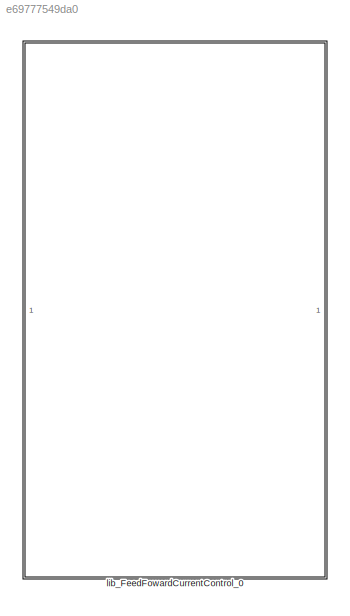
MODEL slx_e69777549da0
KIND library
CONFIG AbsTol = auto
CONFIG EnableMultiTasking = off
CONFIG FixedStep = auto
CONFIG MaxStep = auto
CONFIG MinStep = auto
CONFIG RelTol = 1e-3
CONFIG SampleTimeConstraint = Unconstrained
CONFIG SolverName = VariableStepAuto
CONFIG StartTime = 0.0
CONFIG StopTime = 10.0
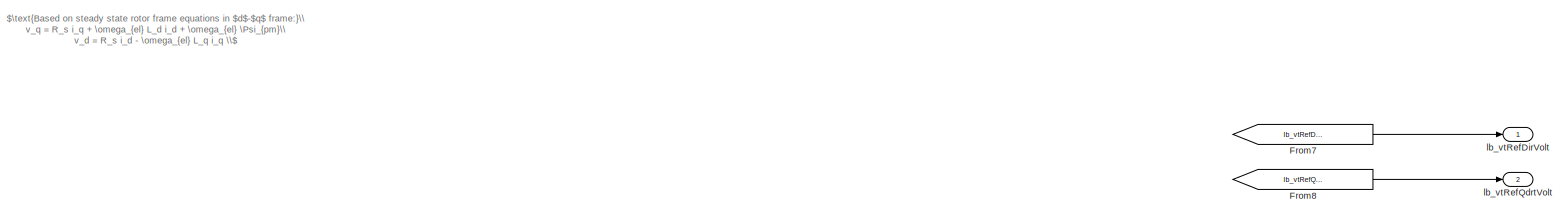
[diagram: lib_FeedFowardCurrentControl_0 - part 1/3, full width, top band]
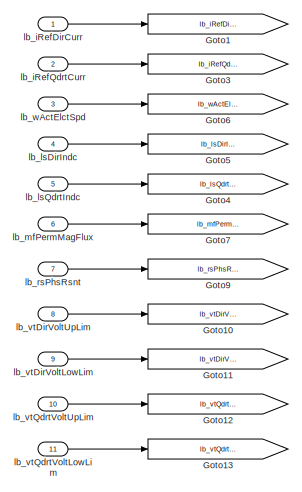
[diagram: lib_FeedFowardCurrentControl_0 - part 2/3, top left region]
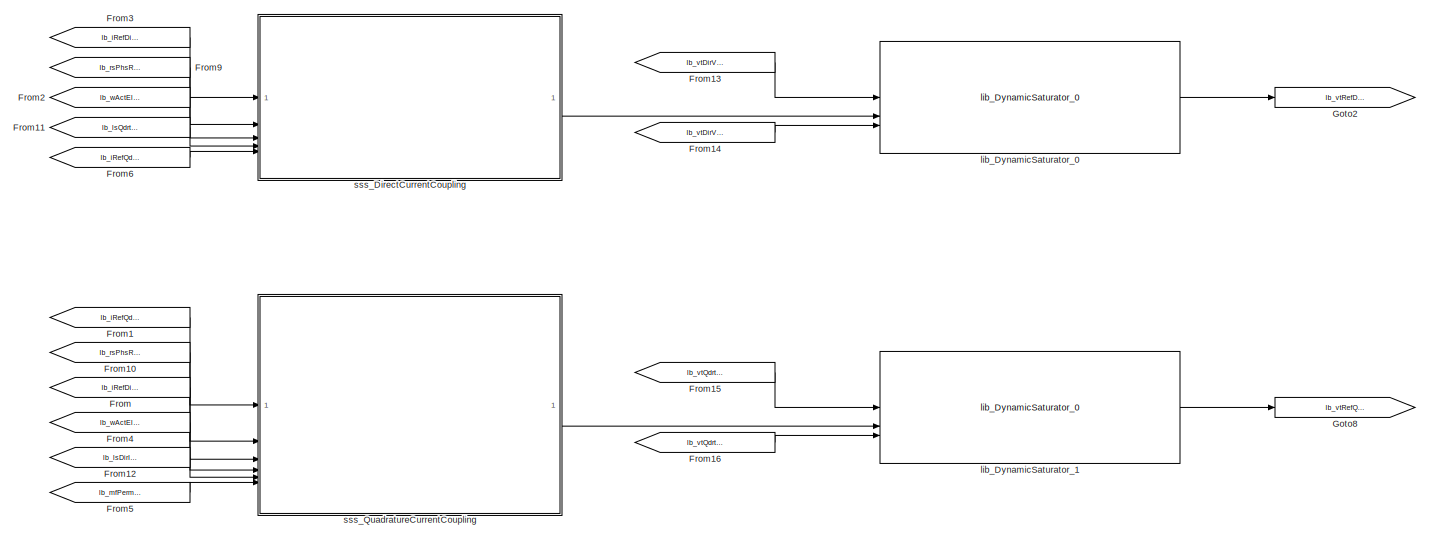
[diagram: lib_FeedFowardCurrentControl_0 - part 3/3, bottom center region]
BLOCK [SubSystem] lib_FeedFowardCurrentControl_0
BLOCK [From] lib_FeedFowardCurrentControl_0/From
  GotoTag = lb_iRefDirCurr
BLOCK [From] lib_FeedFowardCurrentControl_0/From1
  GotoTag = lb_iRefQdrtCurr
BLOCK [From] lib_FeedFowardCurrentControl_0/From10
  GotoTag = lb_rsPhsRsnt
BLOCK [From] lib_FeedFowardCurrentControl_0/From11
  GotoTag = lb_lsQdrtIndc
BLOCK [From] lib_FeedFowardCurrentControl_0/From12
  GotoTag = lb_lsDirIndc
BLOCK [From] lib_FeedFowardCurrentControl_0/From13
  GotoTag = lb_vtDirVoltUpLim
BLOCK [From] lib_FeedFowardCurrentControl_0/From14
  GotoTag = lb_vtDirVoltLowLim
BLOCK [From] lib_FeedFowardCurrentControl_0/From15
  GotoTag = lb_vtQdrtVoltUpLim
BLOCK [From] lib_FeedFowardCurrentControl_0/From16
  GotoTag = lb_vtQdrtVoltLowLim
BLOCK [From] lib_FeedFowardCurrentControl_0/From2
  GotoTag = lb_wActElctSpd
BLOCK [From] lib_FeedFowardCurrentControl_0/From3
  GotoTag = lb_iRefDirCurr
BLOCK [From] lib_FeedFowardCurrentControl_0/From4
  GotoTag = lb_wActElctSpd
BLOCK [From] lib_FeedFowardCurrentControl_0/From5
  GotoTag = lb_mfPermMagFlux
BLOCK [From] lib_FeedFowardCurrentControl_0/From6
  GotoTag = lb_iRefQdrtCurr
BLOCK [From] lib_FeedFowardCurrentControl_0/From7
  GotoTag = lb_vtRefDirVolt
BLOCK [From] lib_FeedFowardCurrentControl_0/From8
  GotoTag = lb_vtRefQdrtVolt
BLOCK [From] lib_FeedFowardCurrentControl_0/From9
  GotoTag = lb_rsPhsRsnt
BLOCK [Goto] lib_FeedFowardCurrentControl_0/Goto1
  GotoTag = lb_iRefDirCurr
BLOCK [Goto] lib_FeedFowardCurrentControl_0/Goto10
  GotoTag = lb_vtDirVoltUpLim
BLOCK [Goto] lib_FeedFowardCurrentControl_0/Goto11
  GotoTag = lb_vtDirVoltLowLim
BLOCK [Goto] lib_FeedFowardCurrentControl_0/Goto12
  GotoTag = lb_vtQdrtVoltUpLim
BLOCK [Goto] lib_FeedFowardCurrentControl_0/Goto13
  GotoTag = lb_vtQdrtVoltLowLim
BLOCK [Goto] lib_FeedFowardCurrentControl_0/Goto2
  GotoTag = lb_vtRefDirVolt
BLOCK [Goto] lib_FeedFowardCurrentControl_0/Goto3
  GotoTag = lb_iRefQdrtCurr
BLOCK [Goto] lib_FeedFowardCurrentControl_0/Goto4
  GotoTag = lb_lsQdrtIndc
BLOCK [Goto] lib_FeedFowardCurrentControl_0/Goto5
  GotoTag = lb_lsDirIndc
BLOCK [Goto] lib_FeedFowardCurrentControl_0/Goto6
  GotoTag = lb_wActElctSpd
BLOCK [Goto] lib_FeedFowardCurrentControl_0/Goto7
  GotoTag = lb_mfPermMagFlux
BLOCK [Goto] lib_FeedFowardCurrentControl_0/Goto8
  GotoTag = lb_vtRefQdrtVolt
BLOCK [Goto] lib_FeedFowardCurrentControl_0/Goto9
  GotoTag = lb_rsPhsRsnt
BLOCK [Inport] lib_FeedFowardCurrentControl_0/lb_iRefDirCurr
BLOCK [Inport] lib_FeedFowardCurrentControl_0/lb_iRefQdrtCurr
  Port = 2
BLOCK [Inport] lib_FeedFowardCurrentControl_0/lb_lsDirIndc
  Port = 4
BLOCK [Inport] lib_FeedFowardCurrentControl_0/lb_lsQdrtIndc
  Port = 5
BLOCK [Inport] lib_FeedFowardCurrentControl_0/lb_mfPermMagFlux
  Port = 6
BLOCK [Inport] lib_FeedFowardCurrentControl_0/lb_rsPhsRsnt
  Port = 7
BLOCK [Inport] lib_FeedFowardCurrentControl_0/lb_vtDirVoltLowLim
  Port = 9
BLOCK [Inport] lib_FeedFowardCurrentControl_0/lb_vtDirVoltUpLim
  Port = 8
BLOCK [Inport] lib_FeedFowardCurrentControl_0/lb_vtQdrtVoltLowLim
  Port = 11
BLOCK [Inport] lib_FeedFowardCurrentControl_0/lb_vtQdrtVoltUpLim
  Port = 10
BLOCK [Outport] lib_FeedFowardCurrentControl_0/lb_vtRefDirVolt
BLOCK [Outport] lib_FeedFowardCurrentControl_0/lb_vtRefQdrtVolt
  Port = 2
BLOCK [Inport] lib_FeedFowardCurrentControl_0/lb_wActElctSpd
  Port = 3
BLOCK [Reference] lib_FeedFowardCurrentControl_0/lib_DynamicSaturator_0  REF=lib_dynamic_saturator/lib_DynamicSaturator_0  (lib defined in slx_fcc78f0d1256)
  SourceBlock = lib_dynamic_saturator/lib_DynamicSaturator_0
BLOCK [Reference] lib_FeedFowardCurrentControl_0/lib_DynamicSaturator_1  REF=lib_dynamic_saturator/lib_DynamicSaturator_0  (lib defined in slx_fcc78f0d1256)
  SourceBlock = lib_dynamic_saturator/lib_DynamicSaturator_0
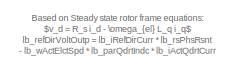
[diagram: lib_FeedFowardCurrentControl_0/sss_DirectCurrentCoupling - part 1/4, top left region]
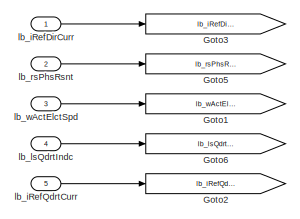
[diagram: lib_FeedFowardCurrentControl_0/sss_DirectCurrentCoupling - part 2/4, middle left region]
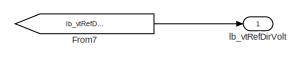
[diagram: lib_FeedFowardCurrentControl_0/sss_DirectCurrentCoupling - part 3/4, top right region]
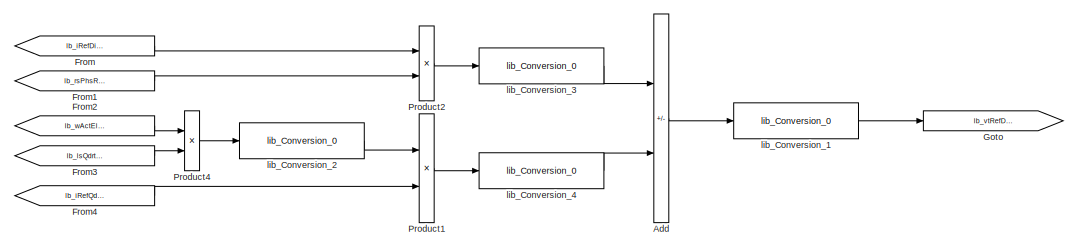
[diagram: lib_FeedFowardCurrentControl_0/sss_DirectCurrentCoupling - part 4/4, bottom center region]
BLOCK [SubSystem] lib_FeedFowardCurrentControl_0/sss_DirectCurrentCoupling
BLOCK [Sum] lib_FeedFowardCurrentControl_0/sss_DirectCurrentCoupling/Add
  IconShape = rectangular
  Inputs = +-
  OutDataTypeStr = Inherit: Inherit via back propagation
  RndMeth = Simplest
BLOCK [From] lib_FeedFowardCurrentControl_0/sss_DirectCurrentCoupling/From
  GotoTag = lb_iRefDirCurr
BLOCK [From] lib_FeedFowardCurrentControl_0/sss_DirectCurrentCoupling/From1
  GotoTag = lb_rsPhsRsnt
BLOCK [From] lib_FeedFowardCurrentControl_0/sss_DirectCurrentCoupling/From2
  GotoTag = lb_wActElctSpd
BLOCK [From] lib_FeedFowardCurrentControl_0/sss_DirectCurrentCoupling/From3
  GotoTag = lb_lsQdrtIndc
BLOCK [From] lib_FeedFowardCurrentControl_0/sss_DirectCurrentCoupling/From4
  GotoTag = lb_iRefQdrtCurr
BLOCK [From] lib_FeedFowardCurrentControl_0/sss_DirectCurrentCoupling/From7
  GotoTag = lb_vtRefDirVolt
BLOCK [Goto] lib_FeedFowardCurrentControl_0/sss_DirectCurrentCoupling/Goto
  GotoTag = lb_vtRefDirVolt
BLOCK [Goto] lib_FeedFowardCurrentControl_0/sss_DirectCurrentCoupling/Goto1
  GotoTag = lb_wActElctSpd
BLOCK [Goto] lib_FeedFowardCurrentControl_0/sss_DirectCurrentCoupling/Goto2
  GotoTag = lb_iRefQdrtCurr
BLOCK [Goto] lib_FeedFowardCurrentControl_0/sss_DirectCurrentCoupling/Goto3
  GotoTag = lb_iRefDirCurr
BLOCK [Goto] lib_FeedFowardCurrentControl_0/sss_DirectCurrentCoupling/Goto5
  GotoTag = lb_rsPhsRsnt
BLOCK [Goto] lib_FeedFowardCurrentControl_0/sss_DirectCurrentCoupling/Goto6
  GotoTag = lb_lsQdrtIndc
BLOCK [Product] lib_FeedFowardCurrentControl_0/sss_DirectCurrentCoupling/Product1
  OutDataTypeStr = Inherit: Inherit via back propagation
  RndMeth = Simplest
BLOCK [Product] lib_FeedFowardCurrentControl_0/sss_DirectCurrentCoupling/Product2
  OutDataTypeStr = Inherit: Inherit via back propagation
  RndMeth = Simplest
BLOCK [Product] lib_FeedFowardCurrentControl_0/sss_DirectCurrentCoupling/Product4
  OutDataTypeStr = Inherit: Inherit via back propagation
  RndMeth = Simplest
BLOCK [Inport] lib_FeedFowardCurrentControl_0/sss_DirectCurrentCoupling/lb_iRefDirCurr
BLOCK [Inport] lib_FeedFowardCurrentControl_0/sss_DirectCurrentCoupling/lb_iRefQdrtCurr
  Port = 5
BLOCK [Inport] lib_FeedFowardCurrentControl_0/sss_DirectCurrentCoupling/lb_lsQdrtIndc
  Port = 4
BLOCK [Inport] lib_FeedFowardCurrentControl_0/sss_DirectCurrentCoupling/lb_rsPhsRsnt
  Port = 2
BLOCK [Outport] lib_FeedFowardCurrentControl_0/sss_DirectCurrentCoupling/lb_vtRefDirVolt
BLOCK [Inport] lib_FeedFowardCurrentControl_0/sss_DirectCurrentCoupling/lb_wActElctSpd
  Port = 3
BLOCK [Reference] lib_FeedFowardCurrentControl_0/sss_DirectCurrentCoupling/lib_Conversion_1  REF=lib_conversion/lib_Conversion_0  (lib defined in slx_7f5c0202220d)
  SourceBlock = lib_conversion/lib_Conversion_0
BLOCK [Reference] lib_FeedFowardCurrentControl_0/sss_DirectCurrentCoupling/lib_Conversion_2  REF=lib_conversion/lib_Conversion_0  (lib defined in slx_7f5c0202220d)
  SourceBlock = lib_conversion/lib_Conversion_0
BLOCK [Reference] lib_FeedFowardCurrentControl_0/sss_DirectCurrentCoupling/lib_Conversion_3  REF=lib_conversion/lib_Conversion_0  (lib defined in slx_7f5c0202220d)
  SourceBlock = lib_conversion/lib_Conversion_0
BLOCK [Reference] lib_FeedFowardCurrentControl_0/sss_DirectCurrentCoupling/lib_Conversion_4  REF=lib_conversion/lib_Conversion_0  (lib defined in slx_7f5c0202220d)
  SourceBlock = lib_conversion/lib_Conversion_0
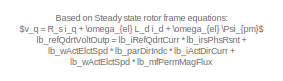
[diagram: lib_FeedFowardCurrentControl_0/sss_QuadratureCurrentCoupling - part 1/4, top left region]
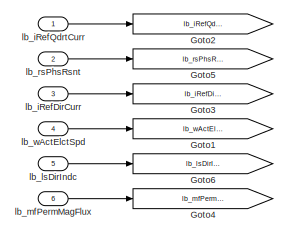
[diagram: lib_FeedFowardCurrentControl_0/sss_QuadratureCurrentCoupling - part 2/4, top left region]
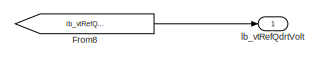
[diagram: lib_FeedFowardCurrentControl_0/sss_QuadratureCurrentCoupling - part 3/4, top right region]
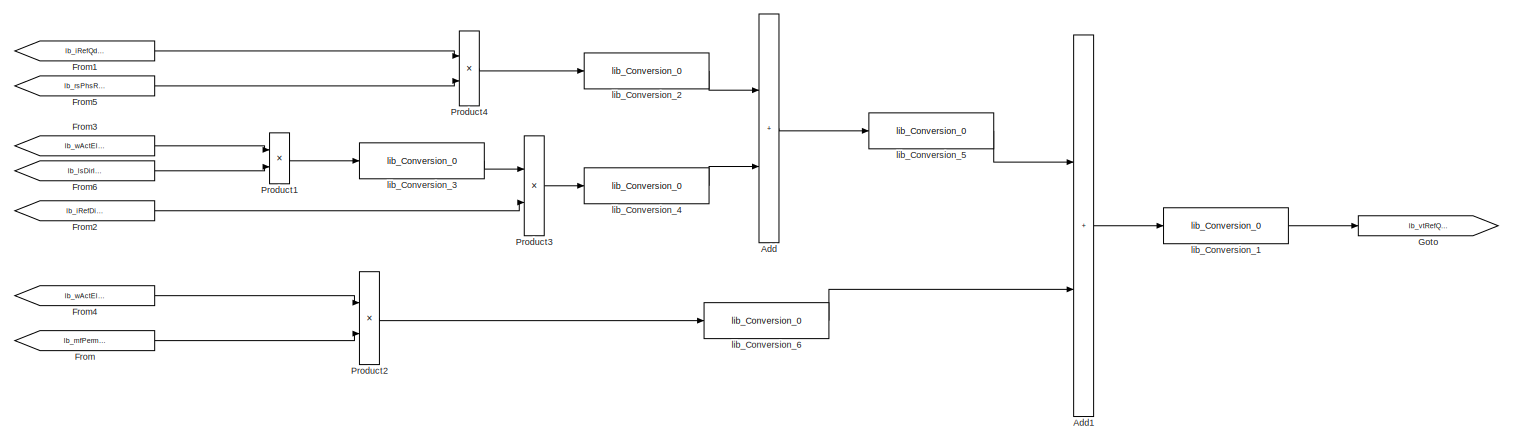
[diagram: lib_FeedFowardCurrentControl_0/sss_QuadratureCurrentCoupling - part 4/4, bottom center region]
BLOCK [SubSystem] lib_FeedFowardCurrentControl_0/sss_QuadratureCurrentCoupling
BLOCK [Sum] lib_FeedFowardCurrentControl_0/sss_QuadratureCurrentCoupling/Add
  IconShape = rectangular
  OutDataTypeStr = Inherit: Inherit via back propagation
  RndMeth = Simplest
BLOCK [Sum] lib_FeedFowardCurrentControl_0/sss_QuadratureCurrentCoupling/Add1
  IconShape = rectangular
  OutDataTypeStr = Inherit: Inherit via back propagation
  RndMeth = Simplest
BLOCK [From] lib_FeedFowardCurrentControl_0/sss_QuadratureCurrentCoupling/From
  GotoTag = lb_mfPermMagFlux
BLOCK [From] lib_FeedFowardCurrentControl_0/sss_QuadratureCurrentCoupling/From1
  GotoTag = lb_iRefQdrtCurr
BLOCK [From] lib_FeedFowardCurrentControl_0/sss_QuadratureCurrentCoupling/From2
  GotoTag = lb_iRefDirCurr
BLOCK [From] lib_FeedFowardCurrentControl_0/sss_QuadratureCurrentCoupling/From3
  GotoTag = lb_wActElctSpd
BLOCK [From] lib_FeedFowardCurrentControl_0/sss_QuadratureCurrentCoupling/From4
  GotoTag = lb_wActElctSpd
BLOCK [From] lib_FeedFowardCurrentControl_0/sss_QuadratureCurrentCoupling/From5
  GotoTag = lb_rsPhsRsnt
BLOCK [From] lib_FeedFowardCurrentControl_0/sss_QuadratureCurrentCoupling/From6
  GotoTag = lb_lsDirIndc
BLOCK [From] lib_FeedFowardCurrentControl_0/sss_QuadratureCurrentCoupling/From8
  GotoTag = lb_vtRefQdrtVolt
BLOCK [Goto] lib_FeedFowardCurrentControl_0/sss_QuadratureCurrentCoupling/Goto
  GotoTag = lb_vtRefQdrtVolt
BLOCK [Goto] lib_FeedFowardCurrentControl_0/sss_QuadratureCurrentCoupling/Goto1
  GotoTag = lb_wActElctSpd
BLOCK [Goto] lib_FeedFowardCurrentControl_0/sss_QuadratureCurrentCoupling/Goto2
  GotoTag = lb_iRefQdrtCurr
BLOCK [Goto] lib_FeedFowardCurrentControl_0/sss_QuadratureCurrentCoupling/Goto3
  GotoTag = lb_iRefDirCurr
BLOCK [Goto] lib_FeedFowardCurrentControl_0/sss_QuadratureCurrentCoupling/Goto4
  GotoTag = lb_mfPermMagFlux
BLOCK [Goto] lib_FeedFowardCurrentControl_0/sss_QuadratureCurrentCoupling/Goto5
  GotoTag = lb_rsPhsRsnt
BLOCK [Goto] lib_FeedFowardCurrentControl_0/sss_QuadratureCurrentCoupling/Goto6
  GotoTag = lb_lsDirIndc
BLOCK [Product] lib_FeedFowardCurrentControl_0/sss_QuadratureCurrentCoupling/Product1
  OutDataTypeStr = Inherit: Inherit via back propagation
  RndMeth = Simplest
BLOCK [Product] lib_FeedFowardCurrentControl_0/sss_QuadratureCurrentCoupling/Product2
  OutDataTypeStr = Inherit: Inherit via back propagation
  RndMeth = Simplest
BLOCK [Product] lib_FeedFowardCurrentControl_0/sss_QuadratureCurrentCoupling/Product3
  OutDataTypeStr = Inherit: Inherit via back propagation
  RndMeth = Simplest
BLOCK [Product] lib_FeedFowardCurrentControl_0/sss_QuadratureCurrentCoupling/Product4
  OutDataTypeStr = Inherit: Inherit via back propagation
  RndMeth = Simplest
BLOCK [Inport] lib_FeedFowardCurrentControl_0/sss_QuadratureCurrentCoupling/lb_iRefDirCurr
  Port = 3
BLOCK [Inport] lib_FeedFowardCurrentControl_0/sss_QuadratureCurrentCoupling/lb_iRefQdrtCurr
BLOCK [Inport] lib_FeedFowardCurrentControl_0/sss_QuadratureCurrentCoupling/lb_lsDirIndc
  Port = 5
BLOCK [Inport] lib_FeedFowardCurrentControl_0/sss_QuadratureCurrentCoupling/lb_mfPermMagFlux
  Port = 6
BLOCK [Inport] lib_FeedFowardCurrentControl_0/sss_QuadratureCurrentCoupling/lb_rsPhsRsnt
  Port = 2
BLOCK [Outport] lib_FeedFowardCurrentControl_0/sss_QuadratureCurrentCoupling/lb_vtRefQdrtVolt
BLOCK [Inport] lib_FeedFowardCurrentControl_0/sss_QuadratureCurrentCoupling/lb_wActElctSpd
  Port = 4
BLOCK [Reference] lib_FeedFowardCurrentControl_0/sss_QuadratureCurrentCoupling/lib_Conversion_1  REF=lib_conversion/lib_Conversion_0  (lib defined in slx_7f5c0202220d)
  SourceBlock = lib_conversion/lib_Conversion_0
BLOCK [Reference] lib_FeedFowardCurrentControl_0/sss_QuadratureCurrentCoupling/lib_Conversion_2  REF=lib_conversion/lib_Conversion_0  (lib defined in slx_7f5c0202220d)
  SourceBlock = lib_conversion/lib_Conversion_0
BLOCK [Reference] lib_FeedFowardCurrentControl_0/sss_QuadratureCurrentCoupling/lib_Conversion_3  REF=lib_conversion/lib_Conversion_0  (lib defined in slx_7f5c0202220d)
  SourceBlock = lib_conversion/lib_Conversion_0
BLOCK [Reference] lib_FeedFowardCurrentControl_0/sss_QuadratureCurrentCoupling/lib_Conversion_4  REF=lib_conversion/lib_Conversion_0  (lib defined in slx_7f5c0202220d)
  SourceBlock = lib_conversion/lib_Conversion_0
BLOCK [Reference] lib_FeedFowardCurrentControl_0/sss_QuadratureCurrentCoupling/lib_Conversion_5  REF=lib_conversion/lib_Conversion_0  (lib defined in slx_7f5c0202220d)
  SourceBlock = lib_conversion/lib_Conversion_0
BLOCK [Reference] lib_FeedFowardCurrentControl_0/sss_QuadratureCurrentCoupling/lib_Conversion_6  REF=lib_conversion/lib_Conversion_0  (lib defined in slx_7f5c0202220d)
  SourceBlock = lib_conversion/lib_Conversion_0
ANNOTATION lib_FeedFowardCurrentControl_0: $\text{Based on steady state rotor frame equations in $d$-$q$ frame:}\\ v_q = R_s i_q + \omega_{el} L_d i_d + \omega_{el} \Psi_{pm}\\ v_d = R_s i_d - \omega_{el} L_q i_q \\$
ANNOTATION lib_FeedFowardCurrentControl_0/sss_DirectCurrentCoupling: Based on Steady state rotor frame equations: $v_d = R_s i_d - \omega_{el} L_q i_q$ lb_refDirVoltOutp = lb_iRefDirCurr * lb_rsPhsRsnt - lb_wActElctSpd * lb_parQdrtIndc * lb_iActQdrtCurr
ANNOTATION lib_FeedFowardCurrentControl_0/sss_QuadratureCurrentCoupling: Based on Steady state rotor frame equations: $v_q = R_s i_q + \omega_{el} L_d i_d + \omega_{el} \Psi_{pm}$ lb_refQdrtVoltOutp = lb_iRefQdrtCurr * lb_irsPhsRsnt + lb_wActElctSpd * lb_parDirIndc * lb_iActDirCurr + lb_wActElctSpd * lb_mfPermMagFlux
LINE lib_FeedFowardCurrentControl_0/From10:1 -> lib_FeedFowardCurrentControl_0/sss_QuadratureCurrentCoupling:2
LINE lib_FeedFowardCurrentControl_0/From11:1 -> lib_FeedFowardCurrentControl_0/sss_DirectCurrentCoupling:4
LINE lib_FeedFowardCurrentControl_0/From12:1 -> lib_FeedFowardCurrentControl_0/sss_QuadratureCurrentCoupling:5
LINE lib_FeedFowardCurrentControl_0/From13:1 -> lib_FeedFowardCurrentControl_0/lib_DynamicSaturator_0:1
LINE lib_FeedFowardCurrentControl_0/From14:1 -> lib_FeedFowardCurrentControl_0/lib_DynamicSaturator_0:3
LINE lib_FeedFowardCurrentControl_0/From15:1 -> lib_FeedFowardCurrentControl_0/lib_DynamicSaturator_1:1
LINE lib_FeedFowardCurrentControl_0/From16:1 -> lib_FeedFowardCurrentControl_0/lib_DynamicSaturator_1:3
LINE lib_FeedFowardCurrentControl_0/From1:1 -> lib_FeedFowardCurrentControl_0/sss_QuadratureCurrentCoupling:1
LINE lib_FeedFowardCurrentControl_0/From2:1 -> lib_FeedFowardCurrentControl_0/sss_DirectCurrentCoupling:3
LINE lib_FeedFowardCurrentControl_0/From3:1 -> lib_FeedFowardCurrentControl_0/sss_DirectCurrentCoupling:1
LINE lib_FeedFowardCurrentControl_0/From4:1 -> lib_FeedFowardCurrentControl_0/sss_QuadratureCurrentCoupling:4
LINE lib_FeedFowardCurrentControl_0/From5:1 -> lib_FeedFowardCurrentControl_0/sss_QuadratureCurrentCoupling:6
LINE lib_FeedFowardCurrentControl_0/From6:1 -> lib_FeedFowardCurrentControl_0/sss_DirectCurrentCoupling:5
LINE lib_FeedFowardCurrentControl_0/From7:1 -> lib_FeedFowardCurrentControl_0/lb_vtRefDirVolt:1
LINE lib_FeedFowardCurrentControl_0/From8:1 -> lib_FeedFowardCurrentControl_0/lb_vtRefQdrtVolt:1
LINE lib_FeedFowardCurrentControl_0/From9:1 -> lib_FeedFowardCurrentControl_0/sss_DirectCurrentCoupling:2
LINE lib_FeedFowardCurrentControl_0/From:1 -> lib_FeedFowardCurrentControl_0/sss_QuadratureCurrentCoupling:3
LINE lib_FeedFowardCurrentControl_0/lb_iRefDirCurr:1 -> lib_FeedFowardCurrentControl_0/Goto1:1
LINE lib_FeedFowardCurrentControl_0/lb_iRefQdrtCurr:1 -> lib_FeedFowardCurrentControl_0/Goto3:1
LINE lib_FeedFowardCurrentControl_0/lb_lsDirIndc:1 -> lib_FeedFowardCurrentControl_0/Goto5:1
LINE lib_FeedFowardCurrentControl_0/lb_lsQdrtIndc:1 -> lib_FeedFowardCurrentControl_0/Goto4:1
LINE lib_FeedFowardCurrentControl_0/lb_mfPermMagFlux:1 -> lib_FeedFowardCurrentControl_0/Goto7:1
LINE lib_FeedFowardCurrentControl_0/lb_rsPhsRsnt:1 -> lib_FeedFowardCurrentControl_0/Goto9:1
LINE lib_FeedFowardCurrentControl_0/lb_vtDirVoltLowLim:1 -> lib_FeedFowardCurrentControl_0/Goto11:1
LINE lib_FeedFowardCurrentControl_0/lb_vtDirVoltUpLim:1 -> lib_FeedFowardCurrentControl_0/Goto10:1
LINE lib_FeedFowardCurrentControl_0/lb_vtQdrtVoltLowLim:1 -> lib_FeedFowardCurrentControl_0/Goto13:1
LINE lib_FeedFowardCurrentControl_0/lb_vtQdrtVoltUpLim:1 -> lib_FeedFowardCurrentControl_0/Goto12:1
LINE lib_FeedFowardCurrentControl_0/lb_wActElctSpd:1 -> lib_FeedFowardCurrentControl_0/Goto6:1
LINE lib_FeedFowardCurrentControl_0/lib_DynamicSaturator_0:1 -> lib_FeedFowardCurrentControl_0/Goto2:1
LINE lib_FeedFowardCurrentControl_0/lib_DynamicSaturator_1:1 -> lib_FeedFowardCurrentControl_0/Goto8:1
LINE lib_FeedFowardCurrentControl_0/sss_DirectCurrentCoupling/Add:1 -> lib_FeedFowardCurrentControl_0/sss_DirectCurrentCoupling/lib_Conversion_1:1
LINE lib_FeedFowardCurrentControl_0/sss_DirectCurrentCoupling/From1:1 -> lib_FeedFowardCurrentControl_0/sss_DirectCurrentCoupling/Product2:2
LINE lib_FeedFowardCurrentControl_0/sss_DirectCurrentCoupling/From2:1 -> lib_FeedFowardCurrentControl_0/sss_DirectCurrentCoupling/Product4:1
LINE lib_FeedFowardCurrentControl_0/sss_DirectCurrentCoupling/From3:1 -> lib_FeedFowardCurrentControl_0/sss_DirectCurrentCoupling/Product4:2
LINE lib_FeedFowardCurrentControl_0/sss_DirectCurrentCoupling/From4:1 -> lib_FeedFowardCurrentControl_0/sss_DirectCurrentCoupling/Product1:2
LINE lib_FeedFowardCurrentControl_0/sss_DirectCurrentCoupling/From7:1 -> lib_FeedFowardCurrentControl_0/sss_DirectCurrentCoupling/lb_vtRefDirVolt:1
LINE lib_FeedFowardCurrentControl_0/sss_DirectCurrentCoupling/From:1 -> lib_FeedFowardCurrentControl_0/sss_DirectCurrentCoupling/Product2:1
LINE lib_FeedFowardCurrentControl_0/sss_DirectCurrentCoupling/Product1:1 -> lib_FeedFowardCurrentControl_0/sss_DirectCurrentCoupling/lib_Conversion_4:1
LINE lib_FeedFowardCurrentControl_0/sss_DirectCurrentCoupling/Product2:1 -> lib_FeedFowardCurrentControl_0/sss_DirectCurrentCoupling/lib_Conversion_3:1
LINE lib_FeedFowardCurrentControl_0/sss_DirectCurrentCoupling/Product4:1 -> lib_FeedFowardCurrentControl_0/sss_DirectCurrentCoupling/lib_Conversion_2:1
LINE lib_FeedFowardCurrentControl_0/sss_DirectCurrentCoupling/lb_iRefDirCurr:1 -> lib_FeedFowardCurrentControl_0/sss_DirectCurrentCoupling/Goto3:1
LINE lib_FeedFowardCurrentControl_0/sss_DirectCurrentCoupling/lb_iRefQdrtCurr:1 -> lib_FeedFowardCurrentControl_0/sss_DirectCurrentCoupling/Goto2:1
LINE lib_FeedFowardCurrentControl_0/sss_DirectCurrentCoupling/lb_lsQdrtIndc:1 -> lib_FeedFowardCurrentControl_0/sss_DirectCurrentCoupling/Goto6:1
LINE lib_FeedFowardCurrentControl_0/sss_DirectCurrentCoupling/lb_rsPhsRsnt:1 -> lib_FeedFowardCurrentControl_0/sss_DirectCurrentCoupling/Goto5:1
LINE lib_FeedFowardCurrentControl_0/sss_DirectCurrentCoupling/lb_wActElctSpd:1 -> lib_FeedFowardCurrentControl_0/sss_DirectCurrentCoupling/Goto1:1
LINE lib_FeedFowardCurrentControl_0/sss_DirectCurrentCoupling/lib_Conversion_1:1 -> lib_FeedFowardCurrentControl_0/sss_DirectCurrentCoupling/Goto:1
LINE lib_FeedFowardCurrentControl_0/sss_DirectCurrentCoupling/lib_Conversion_2:1 -> lib_FeedFowardCurrentControl_0/sss_DirectCurrentCoupling/Product1:1
LINE lib_FeedFowardCurrentControl_0/sss_DirectCurrentCoupling/lib_Conversion_3:1 -> lib_FeedFowardCurrentControl_0/sss_DirectCurrentCoupling/Add:1
LINE lib_FeedFowardCurrentControl_0/sss_DirectCurrentCoupling/lib_Conversion_4:1 -> lib_FeedFowardCurrentControl_0/sss_DirectCurrentCoupling/Add:2
LINE lib_FeedFowardCurrentControl_0/sss_DirectCurrentCoupling:1 -> lib_FeedFowardCurrentControl_0/lib_DynamicSaturator_0:2
LINE lib_FeedFowardCurrentControl_0/sss_QuadratureCurrentCoupling/Add1:1 -> lib_FeedFowardCurrentControl_0/sss_QuadratureCurrentCoupling/lib_Conversion_1:1
LINE lib_FeedFowardCurrentControl_0/sss_QuadratureCurrentCoupling/Add:1 -> lib_FeedFowardCurrentControl_0/sss_QuadratureCurrentCoupling/lib_Conversion_5:1
LINE lib_FeedFowardCurrentControl_0/sss_QuadratureCurrentCoupling/From1:1 -> lib_FeedFowardCurrentControl_0/sss_QuadratureCurrentCoupling/Product4:1
LINE lib_FeedFowardCurrentControl_0/sss_QuadratureCurrentCoupling/From2:1 -> lib_FeedFowardCurrentControl_0/sss_QuadratureCurrentCoupling/Product3:2
LINE lib_FeedFowardCurrentControl_0/sss_QuadratureCurrentCoupling/From3:1 -> lib_FeedFowardCurrentControl_0/sss_QuadratureCurrentCoupling/Product1:1
LINE lib_FeedFowardCurrentControl_0/sss_QuadratureCurrentCoupling/From4:1 -> lib_FeedFowardCurrentControl_0/sss_QuadratureCurrentCoupling/Product2:1
LINE lib_FeedFowardCurrentControl_0/sss_QuadratureCurrentCoupling/From5:1 -> lib_FeedFowardCurrentControl_0/sss_QuadratureCurrentCoupling/Product4:2
LINE lib_FeedFowardCurrentControl_0/sss_QuadratureCurrentCoupling/From6:1 -> lib_FeedFowardCurrentControl_0/sss_QuadratureCurrentCoupling/Product1:2
LINE lib_FeedFowardCurrentControl_0/sss_QuadratureCurrentCoupling/From8:1 -> lib_FeedFowardCurrentControl_0/sss_QuadratureCurrentCoupling/lb_vtRefQdrtVolt:1
LINE lib_FeedFowardCurrentControl_0/sss_QuadratureCurrentCoupling/From:1 -> lib_FeedFowardCurrentControl_0/sss_QuadratureCurrentCoupling/Product2:2
LINE lib_FeedFowardCurrentControl_0/sss_QuadratureCurrentCoupling/Product1:1 -> lib_FeedFowardCurrentControl_0/sss_QuadratureCurrentCoupling/lib_Conversion_3:1
LINE lib_FeedFowardCurrentControl_0/sss_QuadratureCurrentCoupling/Product2:1 -> lib_FeedFowardCurrentControl_0/sss_QuadratureCurrentCoupling/lib_Conversion_6:1
LINE lib_FeedFowardCurrentControl_0/sss_QuadratureCurrentCoupling/Product3:1 -> lib_FeedFowardCurrentControl_0/sss_QuadratureCurrentCoupling/lib_Conversion_4:1
LINE lib_FeedFowardCurrentControl_0/sss_QuadratureCurrentCoupling/Product4:1 -> lib_FeedFowardCurrentControl_0/sss_QuadratureCurrentCoupling/lib_Conversion_2:1
LINE lib_FeedFowardCurrentControl_0/sss_QuadratureCurrentCoupling/lb_iRefDirCurr:1 -> lib_FeedFowardCurrentControl_0/sss_QuadratureCurrentCoupling/Goto3:1
LINE lib_FeedFowardCurrentControl_0/sss_QuadratureCurrentCoupling/lb_iRefQdrtCurr:1 -> lib_FeedFowardCurrentControl_0/sss_QuadratureCurrentCoupling/Goto2:1
LINE lib_FeedFowardCurrentControl_0/sss_QuadratureCurrentCoupling/lb_lsDirIndc:1 -> lib_FeedFowardCurrentControl_0/sss_QuadratureCurrentCoupling/Goto6:1
LINE lib_FeedFowardCurrentControl_0/sss_QuadratureCurrentCoupling/lb_mfPermMagFlux:1 -> lib_FeedFowardCurrentControl_0/sss_QuadratureCurrentCoupling/Goto4:1
LINE lib_FeedFowardCurrentControl_0/sss_QuadratureCurrentCoupling/lb_rsPhsRsnt:1 -> lib_FeedFowardCurrentControl_0/sss_QuadratureCurrentCoupling/Goto5:1
LINE lib_FeedFowardCurrentControl_0/sss_QuadratureCurrentCoupling/lb_wActElctSpd:1 -> lib_FeedFowardCurrentControl_0/sss_QuadratureCurrentCoupling/Goto1:1
LINE lib_FeedFowardCurrentControl_0/sss_QuadratureCurrentCoupling/lib_Conversion_1:1 -> lib_FeedFowardCurrentControl_0/sss_QuadratureCurrentCoupling/Goto:1
LINE lib_FeedFowardCurrentControl_0/sss_QuadratureCurrentCoupling/lib_Conversion_2:1 -> lib_FeedFowardCurrentControl_0/sss_QuadratureCurrentCoupling/Add:1
LINE lib_FeedFowardCurrentControl_0/sss_QuadratureCurrentCoupling/lib_Conversion_3:1 -> lib_FeedFowardCurrentControl_0/sss_QuadratureCurrentCoupling/Product3:1
LINE lib_FeedFowardCurrentControl_0/sss_QuadratureCurrentCoupling/lib_Conversion_4:1 -> lib_FeedFowardCurrentControl_0/sss_QuadratureCurrentCoupling/Add:2
LINE lib_FeedFowardCurrentControl_0/sss_QuadratureCurrentCoupling/lib_Conversion_5:1 -> lib_FeedFowardCurrentControl_0/sss_QuadratureCurrentCoupling/Add1:1
LINE lib_FeedFowardCurrentControl_0/sss_QuadratureCurrentCoupling/lib_Conversion_6:1 -> lib_FeedFowardCurrentControl_0/sss_QuadratureCurrentCoupling/Add1:2
LINE lib_FeedFowardCurrentControl_0/sss_QuadratureCurrentCoupling:1 -> lib_FeedFowardCurrentControl_0/lib_DynamicSaturator_1:2
